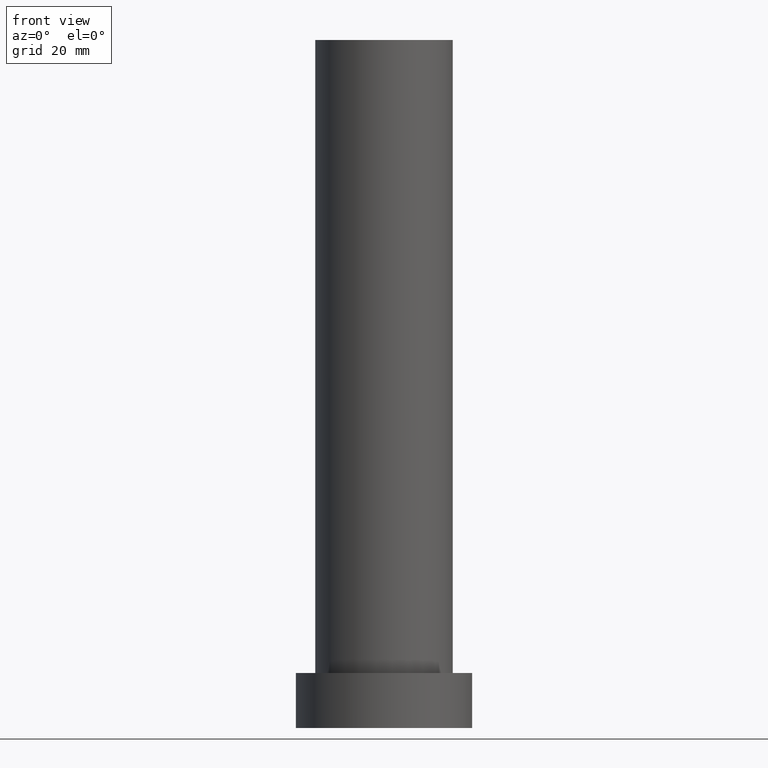
[diagram: clean part render]
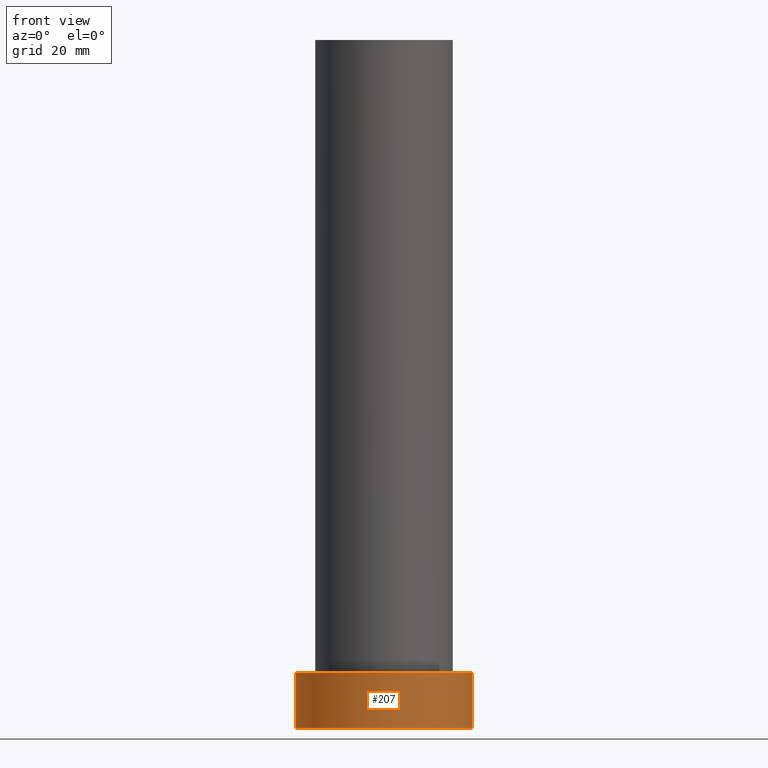
[diagram: same view with one face highlighted and labeled with its STEP entity id]
A machine part, front view. The second image highlights one B-rep face of the part: STEP entity #207.
In plain terms, the highlighted cylindrical surface (partial cylindrical patch) has radius 16 mm, axis along (-0, -0, -1).
Its self-contained STEP definition (entity closure, byte-faithful):
#3 = VECTOR ( 'NONE', #163, 1000.000000000000000 ) ;
#5 = EDGE_CURVE ( 'NONE', #189, #245, #173, .T. ) ;
#8 = CARTESIAN_POINT ( 'NONE',  ( 0.000000000000000000, 0.000000000000000000, 10.00000000000000000 ) ) ;
#12 = DIRECTION ( 'NONE',  ( -0.000000000000000000, -0.000000000000000000, -1.000000000000000000 ) ) ;
#18 = CARTESIAN_POINT ( 'NONE',  ( 16.00000000000000000, 1.959434878635765131E-15, 10.00000000000000000 ) ) ;
#28 = DIRECTION ( 'NONE',  ( 1.000000000000000000, 0.000000000000000000, 0.000000000000000000 ) ) ;
#41 = CIRCLE ( 'NONE', #217, 16.00000000000000000 ) ;
#46 = DIRECTION ( 'NONE',  ( 0.000000000000000000, 0.000000000000000000, 1.000000000000000000 ) ) ;
#62 = CARTESIAN_POINT ( 'NONE',  ( 16.00000000000000000, 1.959434878635765131E-15, 0.000000000000000000 ) ) ;
#64 = EDGE_CURVE ( 'NONE', #206, #165, #41, .T. ) ;
#69 = CYLINDRICAL_SURFACE ( 'NONE', #211, 16.00000000000000000 ) ;
#71 = CARTESIAN_POINT ( 'NONE',  ( -16.00000000000000000, 0.000000000000000000, 10.00000000000000000 ) ) ;
#90 = DIRECTION ( 'NONE',  ( 1.000000000000000000, 0.000000000000000000, 0.000000000000000000 ) ) ;
#124 = DIRECTION ( 'NONE',  ( -0.000000000000000000, -0.000000000000000000, -1.000000000000000000 ) ) ;
#128 = ORIENTED_EDGE ( 'NONE', *, *, #64, .F. ) ;
#134 = LINE ( 'NONE', #18, #242 ) ;
#144 = CARTESIAN_POINT ( 'NONE',  ( 0.000000000000000000, 0.000000000000000000, 10.00000000000000000 ) ) ;
#153 = CARTESIAN_POINT ( 'NONE',  ( -16.00000000000000000, 0.000000000000000000, 0.000000000000000000 ) ) ;
#155 = EDGE_CURVE ( 'NONE', #165, #245, #134, .T. ) ;
#156 = LINE ( 'NONE', #159, #3 ) ;
#159 = CARTESIAN_POINT ( 'NONE',  ( -16.00000000000000000, 0.000000000000000000, 10.00000000000000000 ) ) ;
#162 = ORIENTED_EDGE ( 'NONE', *, *, #155, .F. ) ;
#163 = DIRECTION ( 'NONE',  ( -0.000000000000000000, -0.000000000000000000, -1.000000000000000000 ) ) ;
#165 = VERTEX_POINT ( 'NONE', #167 ) ;
#166 = DIRECTION ( 'NONE',  ( 0.000000000000000000, 0.000000000000000000, 1.000000000000000000 ) ) ;
#167 = CARTESIAN_POINT ( 'NONE',  ( 16.00000000000000000, 1.959434878635765131E-15, 10.00000000000000000 ) ) ;
#171 = EDGE_LOOP ( 'NONE', ( #162, #128, #222, #186 ) ) ;
#173 = CIRCLE ( 'NONE', #205, 16.00000000000000000 ) ;
#186 = ORIENTED_EDGE ( 'NONE', *, *, #5, .T. ) ;
#189 = VERTEX_POINT ( 'NONE', #153 ) ;
#203 = DIRECTION ( 'NONE',  ( -1.000000000000000000, 0.000000000000000000, 0.000000000000000000 ) ) ;
#205 = AXIS2_PLACEMENT_3D ( 'NONE', #246, #46, #90 ) ;
#206 = VERTEX_POINT ( 'NONE', #71 ) ;
#207 = ADVANCED_FACE ( 'NONE', ( #243 ), #69, .T. ) ;
#211 = AXIS2_PLACEMENT_3D ( 'NONE', #144, #124, #203 ) ;
#217 = AXIS2_PLACEMENT_3D ( 'NONE', #8, #166, #28 ) ;
#221 = EDGE_CURVE ( 'NONE', #206, #189, #156, .T. ) ;
#222 = ORIENTED_EDGE ( 'NONE', *, *, #221, .T. ) ;
#242 = VECTOR ( 'NONE', #12, 1000.000000000000000 ) ;
#243 = FACE_OUTER_BOUND ( 'NONE', #171, .T. ) ;
#245 = VERTEX_POINT ( 'NONE', #62 ) ;
#246 = CARTESIAN_POINT ( 'NONE',  ( 0.000000000000000000, 0.000000000000000000, 0.000000000000000000 ) ) ;